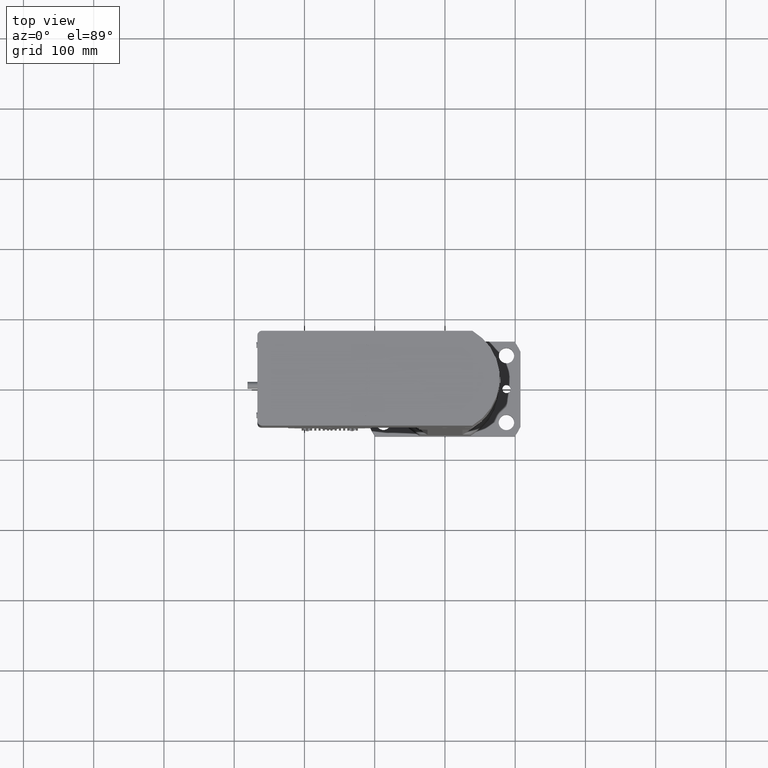
[diagram: clean part render]
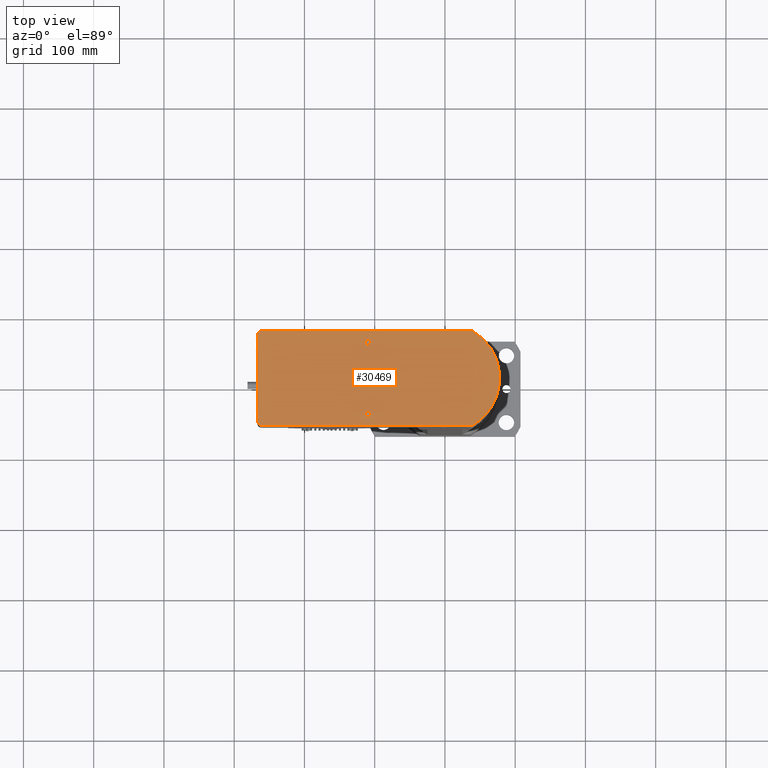
[diagram: same view with one face highlighted and labeled with its STEP entity id]
A machine part, top view. The second image highlights one B-rep face of the part: STEP entity #30469.
In plain terms, the highlighted planar face has unit normal (-0, 0, 1).
Its self-contained STEP definition (entity closure, byte-faithful):
#885=PLANE('',#32600);
#1533=FACE_BOUND('',#4844,.T.);
#1534=FACE_BOUND('',#4845,.T.);
#3015=FACE_OUTER_BOUND('',#4843,.T.);
#4843=EDGE_LOOP('',(#23114,#23115,#23116,#23117,#23118,#23119));
#4844=EDGE_LOOP('',(#23120));
#4845=EDGE_LOOP('',(#23121));
#6996=LINE('',#53280,#9576);
#6999=LINE('',#53290,#9579);
#7002=LINE('',#53298,#9582);
#9576=VECTOR('',#37386,10.);
#9579=VECTOR('',#37397,10.);
#9582=VECTOR('',#37408,10.);
#11078=CIRCLE('',#31665,4.);
#11080=CIRCLE('',#31676,4.);
#11457=CIRCLE('',#32590,78.);
#11458=CIRCLE('',#32593,6.6);
#11461=CIRCLE('',#32598,6.6);
#12220=VERTEX_POINT('',#42436);
#12234=VERTEX_POINT('',#42480);
#13378=VERTEX_POINT('',#53273);
#13379=VERTEX_POINT('',#53275);
#13380=VERTEX_POINT('',#53279);
#13381=VERTEX_POINT('',#53283);
#13383=VERTEX_POINT('',#53289);
#13384=VERTEX_POINT('',#53294);
#15086=EDGE_CURVE('',#12220,#12220,#11078,.T.);
#15107=EDGE_CURVE('',#12234,#12234,#11080,.T.);
#16851=EDGE_CURVE('',#13379,#13378,#11457,.T.);
#16853=EDGE_CURVE('',#13380,#13379,#6996,.T.);
#16855=EDGE_CURVE('',#13381,#13380,#11458,.T.);
#16858=EDGE_CURVE('',#13383,#13381,#6999,.T.);
#16861=EDGE_CURVE('',#13384,#13383,#11461,.T.);
#16863=EDGE_CURVE('',#13378,#13384,#7002,.T.);
#23114=ORIENTED_EDGE('',*,*,#16863,.T.);
#23115=ORIENTED_EDGE('',*,*,#16861,.T.);
#23116=ORIENTED_EDGE('',*,*,#16858,.T.);
#23117=ORIENTED_EDGE('',*,*,#16855,.T.);
#23118=ORIENTED_EDGE('',*,*,#16853,.T.);
#23119=ORIENTED_EDGE('',*,*,#16851,.T.);
#23120=ORIENTED_EDGE('',*,*,#15086,.T.);
#23121=ORIENTED_EDGE('',*,*,#15107,.T.);
#30469=ADVANCED_FACE('',(#3015,#1533,#1534),#885,.T.);
#31665=AXIS2_PLACEMENT_3D('',#42437,#34543,#34544);
#31676=AXIS2_PLACEMENT_3D('',#42481,#34584,#34585);
#32590=AXIS2_PLACEMENT_3D('',#53276,#37381,#37382);
#32593=AXIS2_PLACEMENT_3D('',#53284,#37390,#37391);
#32598=AXIS2_PLACEMENT_3D('',#53295,#37403,#37404);
#32600=AXIS2_PLACEMENT_3D('',#53299,#37409,#37410);
#34543=DIRECTION('center_axis',(-8.00718342386111E-17,-7.95620553405099E-17,
-1.));
#34544=DIRECTION('ref_axis',(-1.,7.95620553405099E-17,8.00718342386111E-17));
#34584=DIRECTION('center_axis',(-8.00718342386111E-17,-7.95620553405099E-17,
-1.));
#34585=DIRECTION('ref_axis',(-1.,7.95620553405099E-17,8.00718342386111E-17));
#37381=DIRECTION('center_axis',(8.00718342386111E-17,7.95620553405099E-17,
1.));
#37382=DIRECTION('ref_axis',(-0.865384615384615,-0.501108239261362,1.09162134939419E-16));
#37386=DIRECTION('',(8.90285788823E-16,-1.,7.95620553405098E-17));
#37390=DIRECTION('center_axis',(8.00718342386111E-17,7.95620553405099E-17,
1.));
#37391=DIRECTION('ref_axis',(-4.75091773185395E-16,1.,-7.95620553405099E-17));
#37397=DIRECTION('',(-1.,-7.66775983267538E-16,8.00718342386112E-17));
#37403=DIRECTION('center_axis',(8.00718342386111E-17,7.95620553405099E-17,
1.));
#37404=DIRECTION('ref_axis',(1.,4.75091773185395E-16,-8.00718342386112E-17));
#37408=DIRECTION('',(-8.01315642614942E-16,1.,-7.95620553405098E-17));
#37409=DIRECTION('center_axis',(8.00718342386111E-17,7.95620553405099E-17,
1.));
#37410=DIRECTION('ref_axis',(4.75091773185395E-16,-1.,7.95620553405098E-17));
#42436=CARTESIAN_POINT('',(-46.9999999999999,110.,917.));
#42437=CARTESIAN_POINT('Origin',(-50.9999999999999,110.,917.));
#42480=CARTESIAN_POINT('',(55.0000000000001,110.,917.));
#42481=CARTESIAN_POINT('Origin',(51.0000000000001,110.,917.));
#53273=CARTESIAN_POINT('',(67.5000000000002,-39.086442662386,917.));
#53275=CARTESIAN_POINT('',(-67.4999999999998,-39.0864426623861,917.));
#53276=CARTESIAN_POINT('Origin',(1.37716975075866E-13,1.08284640597115E-13,
917.));
#53279=CARTESIAN_POINT('',(-67.5000000000001,260.4,917.));
#53280=CARTESIAN_POINT('',(-67.5000000000001,260.4,917.));
#53283=CARTESIAN_POINT('',(-60.9000000000001,267.,917.));
#53284=CARTESIAN_POINT('Origin',(-60.9000000000001,260.4,917.));
#53289=CARTESIAN_POINT('',(60.9,267.,917.));
#53290=CARTESIAN_POINT('',(60.9,267.,917.));
#53294=CARTESIAN_POINT('',(67.4999999999999,260.4,917.));
#53295=CARTESIAN_POINT('Origin',(60.9,260.4,917.));
#53298=CARTESIAN_POINT('',(67.5000000000002,-39.086442662386,917.));
#53299=CARTESIAN_POINT('Origin',(5.45409471851642E-14,110.654163784969,
917.));